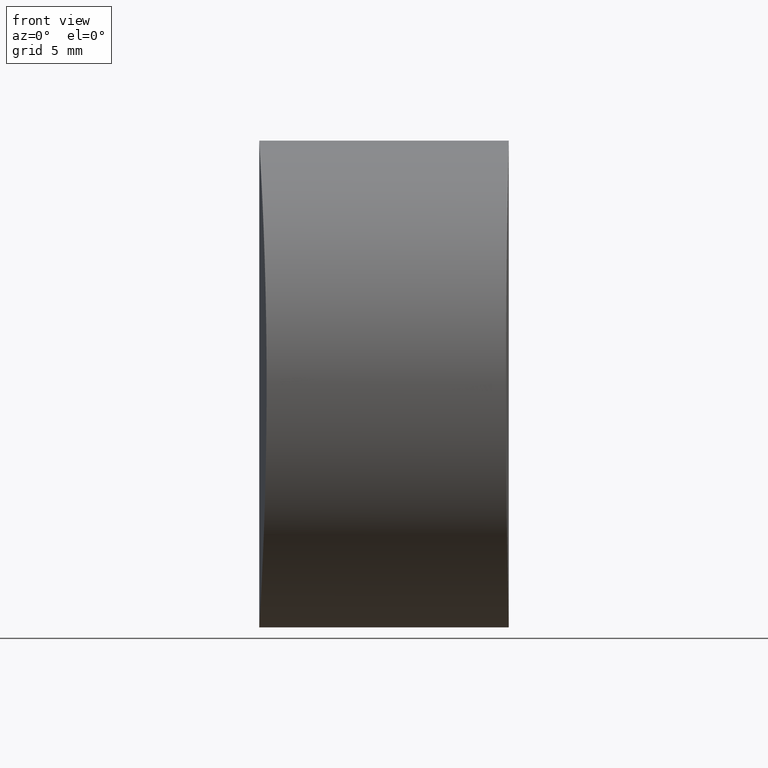
[diagram: clean part render]
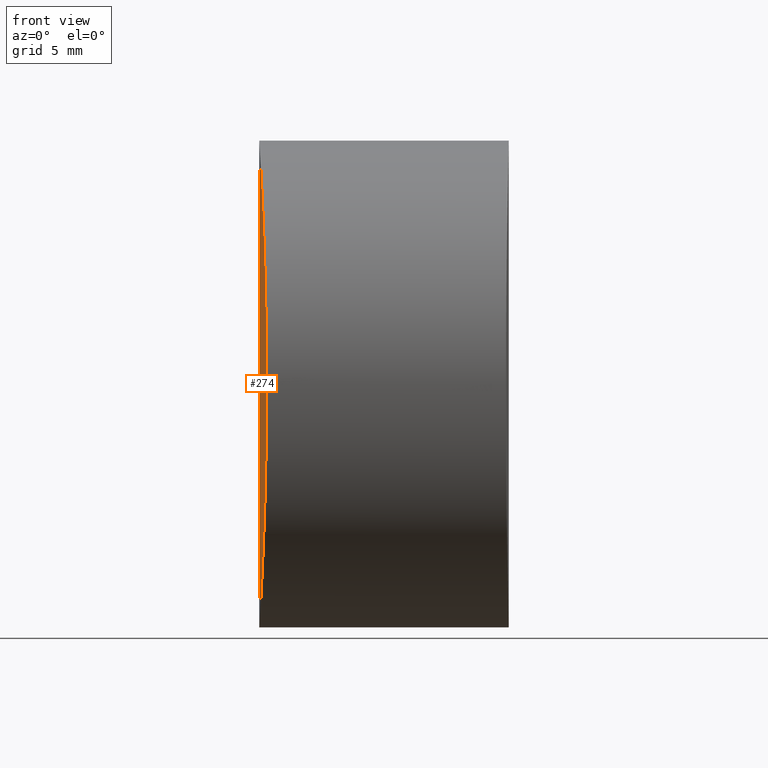
[diagram: same view with one face highlighted and labeled with its STEP entity id]
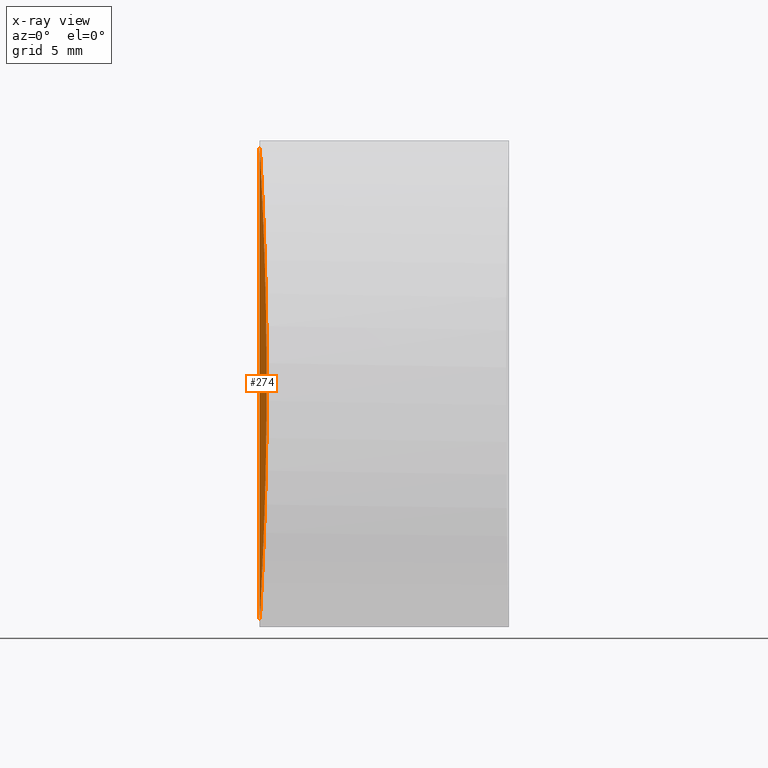
[diagram: x-ray of the same camera — body ghosted, the highlighted face saturated]
A machine part, front view. The second image highlights one B-rep face of the part: STEP entity #274.
The next image is the same camera in x-ray: the body ghosted, the highlighted face saturated — about 0% of this face is hidden behind the body in this view.
In plain terms, the highlighted cylindrical surface (partial cylindrical patch) has radius 191.1 mm, axis along (-0, -0, -1).
Its self-contained STEP definition (entity closure, byte-faithful):
#5 = ORIENTED_EDGE ( 'NONE', *, *, #106, .T. ) ;
#14 = CARTESIAN_POINT ( 'NONE',  ( 0.01828862948277321446, -2.670657741237604910, 23.09763584588865726 ) ) ;
#22 = CARTESIAN_POINT ( 'NONE',  ( 0.1211538041874622162, -6.811124736514065248, 2.179257800876255313 ) ) ;
#24 = CARTESIAN_POINT ( 'NONE',  ( 4.558858377064731308E-14, -0.7727127826993872572, 23.39999999999999858 ) ) ;
#36 = CARTESIAN_POINT ( 'NONE',  ( 0.004683085032211964024, -1.532475342305965826, 0.07579627774698513565 ) ) ;
#38 = CARTESIAN_POINT ( 'NONE',  ( 0.1324851878251786519, -7.120899588900803323, 2.408536920844716711 ) ) ;
#45 = VECTOR ( 'NONE', #95, 1000.000000000000000 ) ;
#47 = CARTESIAN_POINT ( 'NONE',  ( 0.2258572472340499016, -9.291472971536039793, 18.82088685353322433 ) ) ;
#49 = CARTESIAN_POINT ( 'NONE',  ( 0.04417423176171183380, -4.123936680598489168, 0.7441794719831668070 ) ) ;
#57 = VERTEX_POINT ( 'NONE', #341 ) ;
#68 = CARTESIAN_POINT ( 'NONE',  ( 191.0999999999999659, 0.000000000000000000, 23.39999999999999858 ) ) ;
#72 = CARTESIAN_POINT ( 'NONE',  ( 0.004685711583734535925, -1.536941520492479896, 23.32419344934778138 ) ) ;
#76 = CARTESIAN_POINT ( 'NONE',  ( 0.2688461668612495137, -10.13476345582216709, 5.841416531613713659 ) ) ;
#78 = CARTESIAN_POINT ( 'NONE',  ( 0.2696327360444312760, -10.15683106980765160, 17.55769587602879511 ) ) ;
#91 = CARTESIAN_POINT ( 'NONE',  ( 0.02357553998314664001, -3.024072136590172377, 0.3910512772373815338 ) ) ;
#95 = DIRECTION ( 'NONE',  ( -0.000000000000000000, -0.000000000000000000, -1.000000000000000000 ) ) ;
#96 = CARTESIAN_POINT ( 'NONE',  ( 0.3538079010176019557, -11.62421281636200021, 13.23240951220729755 ) ) ;
#98 = CARTESIAN_POINT ( 'NONE',  ( 0.3142530698112762089, -10.95583632843685606, 15.82389500539943938 ) ) ;
#101 = CARTESIAN_POINT ( 'NONE',  ( 0.08952602445483213989, -5.858562225071722196, 21.83477586700820794 ) ) ;
#103 = CARTESIAN_POINT ( 'NONE',  ( 0.3404098460631784784, -11.40150407917839459, 14.35346101549901654 ) ) ;
#105 = CARTESIAN_POINT ( 'NONE',  ( 0.1326867550864878065, -7.148691173889913486, 20.99393456110323086 ) ) ;
#106 = EDGE_CURVE ( 'NONE', #57, #201, #124, .T. ) ;
#124 = B_SPLINE_CURVE_WITH_KNOTS ( 'NONE', 3,
 ( #320, #289, #36, #262, #91, #208, #49, #129, #246, #22, #38, #188, #360, #275, #296, #356, #76, #251, #132, #249, #350, #353, #323, #358, #322, #96, #103, #161, #266, #98, #331, #78, #190, #47, #222, #134, #217, #105, #220, #101, #327, #224, #305, #152, #14, #72, #24, #276 ),
 .UNSPECIFIED., .F., .F.,
 ( 4, 2, 2, 2, 2, 2, 2, 2, 2, 1, 2, 2, 2, 2, 2, 2, 2, 2, 2, 2, 2, 1, 2, 2, 4 ),
 ( 0.05484474058114470474, 0.05712994142490343541, 0.05827254184678280075, 0.05941514226866216608, 0.06170034311242089675, 0.06284294353430026903, 0.06398554395617962742, 0.06627074479993835809, 0.06741334522181771649, 0.06855594564369707489, 0.06969854606557643328, 0.07084114648745579168, 0.07312634733121452235, 0.07541154817497323914, 0.07655414859685259754, 0.07769674901873196982, 0.07998194986249068661, 0.08112455028437004501, 0.08226715070624941728, 0.08455235155000814795, 0.08569495197188750635, 0.08683755239376686474, 0.08798015281564625090, 0.08912275323752560929, 0.09140795408128432609 ),
 .UNSPECIFIED. ) ;
#129 = CARTESIAN_POINT ( 'NONE',  ( 0.06906939684451847417, -5.186058986216571576, 1.184191855007755478 ) ) ;
#132 = CARTESIAN_POINT ( 'NONE',  ( 0.3065203718556885337, -10.82228209107901229, 7.205287369281685450 ) ) ;
#133 = LINE ( 'NONE', #248, #45 ) ;
#134 = CARTESIAN_POINT ( 'NONE',  ( 0.1909770891494943224, -8.545628098470910317, 19.70047795007164382 ) ) ;
#152 = CARTESIAN_POINT ( 'NONE',  ( 0.02391733196188592855, -3.045416550865220007, 23.00317496979894116 ) ) ;
#158 = DIRECTION ( 'NONE',  ( -0.000000000000000000, -0.000000000000000000, -1.000000000000000000 ) ) ;
#161 = CARTESIAN_POINT ( 'NONE',  ( 0.3348832094766158174, -11.30896271518269991, 14.72402018924531042 ) ) ;
#167 = AXIS2_PLACEMENT_3D ( 'NONE', #68, #158, #219 ) ;
#188 = CARTESIAN_POINT ( 'NONE',  ( 0.1556387689904809302, -7.716854189056987501, 2.897235744872689089 ) ) ;
#190 = CARTESIAN_POINT ( 'NONE',  ( 0.2371950226966852149, -9.520753545022664355, 18.51110905243059790 ) ) ;
#201 = VERTEX_POINT ( 'NONE', #258 ) ;
#208 = CARTESIAN_POINT ( 'NONE',  ( 0.03661663858924214809, -3.758794381502488680, 0.6135759462773281436 ) ) ;
#217 = CARTESIAN_POINT ( 'NONE',  ( 0.1559247766721120199, -7.737007858354031598, 20.50967295122812928 ) ) ;
#219 = DIRECTION ( 'NONE',  ( -1.000000000000000000, 0.000000000000000000, 0.000000000000000000 ) ) ;
#220 = CARTESIAN_POINT ( 'NONE',  ( 0.1000273059300455097, -6.190521725562442512, 21.63555192461745236 ) ) ;
#222 = CARTESIAN_POINT ( 'NONE',  ( 0.2026949681708056783, -8.802770766572269423, 19.41684692039357785 ) ) ;
#224 = CARTESIAN_POINT ( 'NONE',  ( 0.05189345613456830542, -4.494677088921451791, 22.52229710341722679 ) ) ;
#234 = EDGE_LOOP ( 'NONE', ( #5, #292 ) ) ;
#246 = CARTESIAN_POINT ( 'NONE',  ( 0.08873968446164799684, -5.857720589991173732, 1.543183654131029980 ) ) ;
#248 = CARTESIAN_POINT ( 'NONE',  ( 5.551115123125782702E-14, 0.000000000000000000, 23.39999999999999858 ) ) ;
#249 = CARTESIAN_POINT ( 'NONE',  ( 0.3214531500796944941, -11.08009675323683574, 7.922728567130905120 ) ) ;
#251 = CARTESIAN_POINT ( 'NONE',  ( 0.2883693503445649009, -10.49591884553274745, 6.516167619462591709 ) ) ;
#258 = CARTESIAN_POINT ( 'NONE',  ( 4.559910881582112822E-14, 0.000000000000000000, 23.39999999999999858 ) ) ;
#262 = CARTESIAN_POINT ( 'NONE',  ( 0.01805813284939798008, -2.653516375595482035, 0.2985089107936947928 ) ) ;
#266 = CARTESIAN_POINT ( 'NONE',  ( 0.3218217903353463027, -11.08643950043718895, 15.45874912723656713 ) ) ;
#274 = ADVANCED_FACE ( 'NONE', ( #321 ), #357, .T. ) ;
#275 = CARTESIAN_POINT ( 'NONE',  ( 0.2024063344442453005, -8.809670499079260253, 3.962989993522655574 ) ) ;
#276 = CARTESIAN_POINT ( 'NONE',  ( 4.559910881582112822E-14, 0.000000000000000000, 23.39999999999999858 ) ) ;
#289 = CARTESIAN_POINT ( 'NONE',  ( 4.572170911552425699E-14, -0.7727082876842013004, 3.071906155375605428E-16 ) ) ;
#292 = ORIENTED_EDGE ( 'NONE', *, *, #336, .T. ) ;
#296 = CARTESIAN_POINT ( 'NONE',  ( 0.2256530079673970957, -9.293928023442306952, 4.551301120403278944 ) ) ;
#305 = CARTESIAN_POINT ( 'NONE',  ( 0.03698296832274575868, -3.777228148288986898, 22.78011163670956307 ) ) ;
#320 = CARTESIAN_POINT ( 'NONE',  ( 4.571769177407550517E-14, -2.541307647570762922E-32, 2.919881234129970241E-16 ) ) ;
#321 = FACE_OUTER_BOUND ( 'NONE', #234, .T. ) ;
#322 = CARTESIAN_POINT ( 'NONE',  ( 0.3584998614300796693, -11.70000533708975432, 12.47262467282035914 ) ) ;
#323 = CARTESIAN_POINT ( 'NONE',  ( 0.3538041364806479017, -11.62418425166281288, 10.16299216870878830 ) ) ;
#327 = CARTESIAN_POINT ( 'NONE',  ( 0.07002304802444314635, -5.183804147066389589, 22.19593291634367915 ) ) ;
#331 = CARTESIAN_POINT ( 'NONE',  ( 0.2893247965807574928, -10.51582397519874235, 16.88602784478219831 ) ) ;
#336 = EDGE_CURVE ( 'NONE', #201, #57, #133, .T. ) ;
#341 = CARTESIAN_POINT ( 'NONE',  ( 4.571769177407550517E-14, -2.541307647570762922E-32, 2.919881234129970241E-16 ) ) ;
#350 = CARTESIAN_POINT ( 'NONE',  ( 0.3345392029616972573, -11.30316102344688289, 8.654532151427368092 ) ) ;
#353 = CARTESIAN_POINT ( 'NONE',  ( 0.3401773941661719869, -11.39762270699285018, 9.029286653990176603 ) ) ;
#356 = CARTESIAN_POINT ( 'NONE',  ( 0.2583355465329575940, -9.935540652889567781, 5.509460412952904562 ) ) ;
#357 = CYLINDRICAL_SURFACE ( 'NONE', #167, 191.0999999999999091 ) ;
#358 = CARTESIAN_POINT ( 'NONE',  ( 0.3584992066463472127, -11.69999466235201169, 10.92721369453514058 ) ) ;
#360 = CARTESIAN_POINT ( 'NONE',  ( 0.1673543689816237579, -8.000482656717435859, 3.154376453690868498 ) ) ;